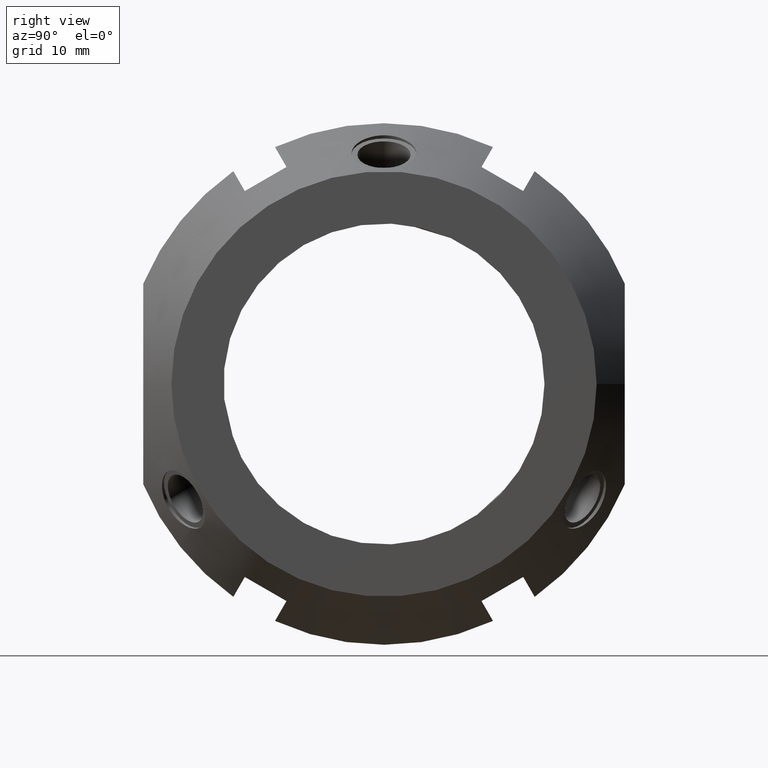
[diagram: clean part render]
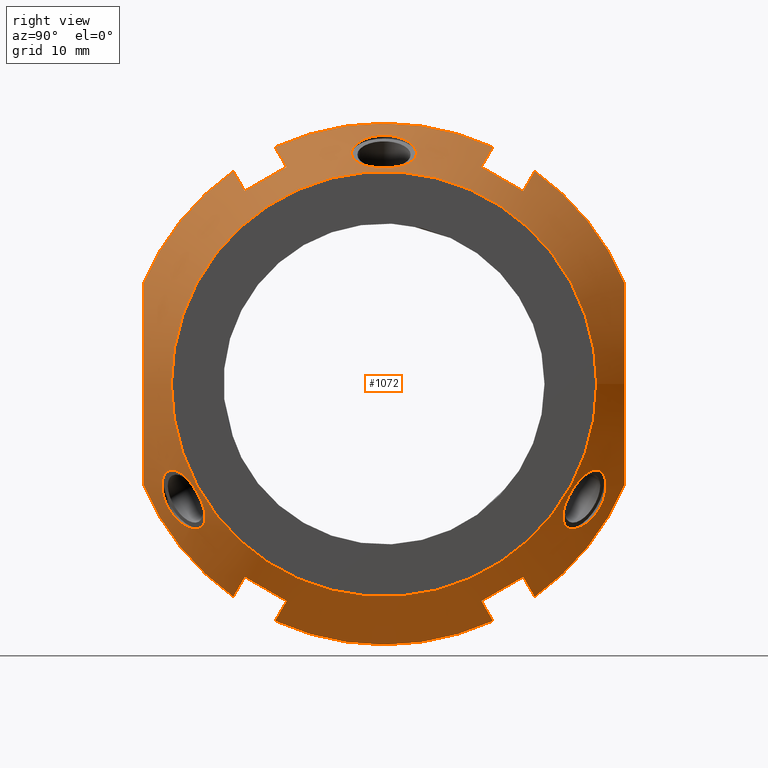
[diagram: same view with one face highlighted and labeled with its STEP entity id]
A machine part, right view. The second image highlights one B-rep face of the part: STEP entity #1072.
In plain terms, the highlighted conical surface has half-angle 30 deg.
Its self-contained STEP definition (entity closure, byte-faithful):
#90=CARTESIAN_POINT('',(16.540316035896449,17.348076211353295,-24.04774941164094));
#91=VERTEX_POINT('',#90);
#98=CARTESIAN_POINT('',(16.540316035896449,12.151923788646661,-27.047749411640936));
#99=VERTEX_POINT('',#98);
#100=CARTESIAN_POINT('',(16.540316035896449,12.151923788646661,-27.047749411640936));
#101=CARTESIAN_POINT('',(17.066026895472259,14.750000000000156,-25.547749411640833));
#102=CARTESIAN_POINT('',(16.540316035896449,17.348076211353295,-24.04774941164094));
#110=(BOUNDED_CURVE()B_SPLINE_CURVE(2,(#100,#101,#102),.UNSPECIFIED.,.F.,.U.)B_SPLINE_CURVE_WITH_KNOTS((3,3),(1.122959180387833,1.795944723477461),.UNSPECIFIED.)CURVE()GEOMETRIC_REPRESENTATION_ITEM()RATIONAL_B_SPLINE_CURVE((1.048144488295492,1.05355042695875,1.048144488295493))REPRESENTATION_ITEM(''));
#111=EDGE_CURVE('',#99,#91,#110,.T.);
#143=CARTESIAN_POINT('',(11.607695154586736,13.582544913931082,-29.525657887014884));
#144=VERTEX_POINT('',#143);
#145=CARTESIAN_POINT('',(11.607695154586724,13.582544913931089,-29.525657887014887));
#146=CARTESIAN_POINT('',(14.188078819209133,12.83445837981427,-28.229934001466471));
#147=CARTESIAN_POINT('',(16.540316035896453,12.151923788646659,-27.047749411640936));
#155=(BOUNDED_CURVE()B_SPLINE_CURVE(2,(#145,#146,#147),.UNSPECIFIED.,.F.,.U.)B_SPLINE_CURVE_WITH_KNOTS((3,3),(0.0,0.570240793537052),.UNSPECIFIED.)CURVE()GEOMETRIC_REPRESENTATION_ITEM()RATIONAL_B_SPLINE_CURVE((1.0,1.001061348112866,1.0))REPRESENTATION_ITEM(''));
#156=EDGE_CURVE('',#144,#99,#155,.T.);
#187=CARTESIAN_POINT('',(11.607695154586736,18.778697336637716,-26.525657887014887));
#188=VERTEX_POINT('',#187);
#195=CARTESIAN_POINT('',(16.540316035896449,17.348076211353298,-24.04774941164094));
#196=CARTESIAN_POINT('',(14.18807882505018,18.030610800826775,-25.229933998532161));
#197=CARTESIAN_POINT('',(11.607695154586722,18.778697336637723,-26.525657887014891));
#205=(BOUNDED_CURVE()B_SPLINE_CURVE(2,(#195,#196,#197),.UNSPECIFIED.,.F.,.U.)B_SPLINE_CURVE_WITH_KNOTS((3,3),(0.0,0.570240793537052),.UNSPECIFIED.)CURVE()GEOMETRIC_REPRESENTATION_ITEM()RATIONAL_B_SPLINE_CURVE((1.0,1.001061348323137,1.0))REPRESENTATION_ITEM(''));
#206=EDGE_CURVE('',#91,#188,#205,.T.);
#234=CARTESIAN_POINT('',(16.540316035896453,-17.34807621135332,-24.047749411640925));
#235=VERTEX_POINT('',#234);
#242=CARTESIAN_POINT('',(11.607695154586741,-18.778697336637713,-26.52565788701488));
#243=VERTEX_POINT('',#242);
#244=CARTESIAN_POINT('',(11.607695154586722,-18.778697336637716,-26.525657887014891));
#245=CARTESIAN_POINT('',(14.188078825233294,-18.030610800773673,-25.22993399844016));
#246=CARTESIAN_POINT('',(16.540316035896453,-17.348076211353316,-24.047749411640925));
#254=(BOUNDED_CURVE()B_SPLINE_CURVE(2,(#244,#245,#246),.UNSPECIFIED.,.F.,.U.)B_SPLINE_CURVE_WITH_KNOTS((3,3),(0.0,0.570240793537052),.UNSPECIFIED.)CURVE()GEOMETRIC_REPRESENTATION_ITEM()RATIONAL_B_SPLINE_CURVE((1.0,1.001061348352219,1.0))REPRESENTATION_ITEM(''));
#255=EDGE_CURVE('',#243,#235,#254,.T.);
#288=CARTESIAN_POINT('',(11.607695154586731,-13.582544913931084,-29.525657887014884));
#289=VERTEX_POINT('',#288);
#296=CARTESIAN_POINT('',(16.540316035896449,-12.151923788646686,-27.047749411640929));
#297=VERTEX_POINT('',#296);
#298=CARTESIAN_POINT('',(16.540316035896449,-12.151923788646684,-27.047749411640929));
#299=CARTESIAN_POINT('',(14.188078820549956,-12.834458379425392,-28.229934000792891));
#300=CARTESIAN_POINT('',(11.607695154586722,-13.582544913931088,-29.525657887014887));
#308=(BOUNDED_CURVE()B_SPLINE_CURVE(2,(#298,#299,#300),.UNSPECIFIED.,.F.,.U.)B_SPLINE_CURVE_WITH_KNOTS((3,3),(0.0,0.570240793537052),.UNSPECIFIED.)CURVE()GEOMETRIC_REPRESENTATION_ITEM()RATIONAL_B_SPLINE_CURVE((1.0,1.001061348164373,1.0))REPRESENTATION_ITEM(''));
#309=EDGE_CURVE('',#297,#289,#308,.T.);
#339=CARTESIAN_POINT('',(16.540316035896453,-17.34807621135332,-24.047749411640925));
#340=CARTESIAN_POINT('',(17.066026895472259,-14.749999999999819,-25.547749411641032));
#341=CARTESIAN_POINT('',(16.540316035896449,-12.151923788646686,-27.047749411640929));
#349=(BOUNDED_CURVE()B_SPLINE_CURVE(2,(#339,#340,#341),.UNSPECIFIED.,.F.,.U.)B_SPLINE_CURVE_WITH_KNOTS((3,3),(1.12295918038783,1.795944723477455),.UNSPECIFIED.)CURVE()GEOMETRIC_REPRESENTATION_ITEM()RATIONAL_B_SPLINE_CURVE((1.048144488295489,1.053550426958746,1.048144488295489))REPRESENTATION_ITEM(''));
#350=EDGE_CURVE('',#235,#297,#349,.T.);
#557=CARTESIAN_POINT('',(11.607695154586724,0.0,0.0));
#558=DIRECTION('',(1.0,0.0,0.0));
#559=DIRECTION('',(0.0,1.0,0.0));
#560=AXIS2_PLACEMENT_3D('',#557,#558,#559);
#561=CIRCLE('',#560,32.499999999999993);
#562=EDGE_CURVE('',#289,#144,#561,.T.);
#575=CARTESIAN_POINT('',(11.607695154586724,-30.000000000000039,-12.499999999999897));
#576=VERTEX_POINT('',#575);
#577=CARTESIAN_POINT('',(11.607695154586724,0.0,0.0));
#578=DIRECTION('',(1.0,0.0,0.0));
#579=DIRECTION('',(0.0,1.0,0.0));
#580=AXIS2_PLACEMENT_3D('',#577,#578,#579);
#581=CIRCLE('',#580,32.499999999999993);
#582=EDGE_CURVE('',#576,#243,#581,.T.);
#600=CARTESIAN_POINT('',(16.540316035896449,12.151923788646661,27.047749411640936));
#601=VERTEX_POINT('',#600);
#608=CARTESIAN_POINT('',(16.540316035896449,17.348076211353295,24.04774941164094));
#609=VERTEX_POINT('',#608);
#610=CARTESIAN_POINT('',(16.540316035896449,17.348076211353295,24.04774941164094));
#611=CARTESIAN_POINT('',(17.066026895472262,14.749999999999801,25.547749411641046));
#612=CARTESIAN_POINT('',(16.540316035896449,12.151923788646661,27.047749411640936));
#620=(BOUNDED_CURVE()B_SPLINE_CURVE(2,(#610,#611,#612),.UNSPECIFIED.,.F.,.U.)B_SPLINE_CURVE_WITH_KNOTS((3,3),(1.122959180387833,1.795944723477462),.UNSPECIFIED.)CURVE()GEOMETRIC_REPRESENTATION_ITEM()RATIONAL_B_SPLINE_CURVE((1.048144488295492,1.053550426958749,1.048144488295492))REPRESENTATION_ITEM(''));
#621=EDGE_CURVE('',#609,#601,#620,.T.);
#639=CARTESIAN_POINT('',(11.607695154586736,18.778697336637716,26.525657887014887));
#640=VERTEX_POINT('',#639);
#641=CARTESIAN_POINT('',(11.607695154586722,18.778697336637723,26.525657887014891));
#642=CARTESIAN_POINT('',(14.188078823961231,18.030610801142611,25.229933999079208));
#643=CARTESIAN_POINT('',(16.540316035896449,17.348076211353295,24.04774941164094));
#651=(BOUNDED_CURVE()B_SPLINE_CURVE(2,(#641,#642,#643),.UNSPECIFIED.,.F.,.U.)B_SPLINE_CURVE_WITH_KNOTS((3,3),(0.0,0.539530756054235),.UNSPECIFIED.)CURVE()GEOMETRIC_REPRESENTATION_ITEM()RATIONAL_B_SPLINE_CURVE((1.0,1.002364907290713,1.002606049517808))REPRESENTATION_ITEM(''));
#652=EDGE_CURVE('',#640,#609,#651,.T.);
#669=CARTESIAN_POINT('',(11.607695154586736,13.582544913931082,29.525657887014884));
#670=VERTEX_POINT('',#669);
#677=CARTESIAN_POINT('',(16.540316035896449,12.151923788646661,27.047749411640936));
#678=CARTESIAN_POINT('',(14.18807882359555,12.8344583785422,28.229933999263178));
#679=CARTESIAN_POINT('',(11.607695154586724,13.582544913931089,29.525657887014887));
#687=(BOUNDED_CURVE()B_SPLINE_CURVE(2,(#677,#678,#679),.UNSPECIFIED.,.F.,.U.)B_SPLINE_CURVE_WITH_KNOTS((3,3),(0.662052451349596,1.201583207497734),.UNSPECIFIED.)CURVE()GEOMETRIC_REPRESENTATION_ITEM()RATIONAL_B_SPLINE_CURVE((1.002606049484695,1.002364907260999,1.0))REPRESENTATION_ITEM(''));
#688=EDGE_CURVE('',#601,#670,#687,.T.);
#700=CARTESIAN_POINT('',(16.540316035896453,-17.34807621135332,24.047749411640925));
#701=VERTEX_POINT('',#700);
#708=CARTESIAN_POINT('',(16.540316035896449,-12.151923788646686,27.047749411640929));
#709=VERTEX_POINT('',#708);
#710=CARTESIAN_POINT('',(16.540316035896449,-12.151923788646686,27.047749411640929));
#711=CARTESIAN_POINT('',(17.066026895472266,-14.750000000000183,25.547749411640822));
#712=CARTESIAN_POINT('',(16.540316035896453,-17.34807621135332,24.047749411640925));
#720=(BOUNDED_CURVE()B_SPLINE_CURVE(2,(#710,#711,#712),.UNSPECIFIED.,.F.,.U.)B_SPLINE_CURVE_WITH_KNOTS((3,3),(1.122959180387831,1.795944723477457),.UNSPECIFIED.)CURVE()GEOMETRIC_REPRESENTATION_ITEM()RATIONAL_B_SPLINE_CURVE((1.048144488295489,1.053550426958746,1.048144488295489))REPRESENTATION_ITEM(''));
#721=EDGE_CURVE('',#709,#701,#720,.T.);
#739=CARTESIAN_POINT('',(11.607695154586731,-13.582544913931084,29.525657887014884));
#740=VERTEX_POINT('',#739);
#741=CARTESIAN_POINT('',(11.607695154586722,-13.582544913931088,29.525657887014887));
#742=CARTESIAN_POINT('',(14.188078823582666,-12.83445837854595,28.229933999269655));
#743=CARTESIAN_POINT('',(16.540316035896449,-12.151923788646686,27.047749411640929));
#751=(BOUNDED_CURVE()B_SPLINE_CURVE(2,(#741,#742,#743),.UNSPECIFIED.,.F.,.U.)B_SPLINE_CURVE_WITH_KNOTS((3,3),(0.0,0.539530756152027),.UNSPECIFIED.)CURVE()GEOMETRIC_REPRESENTATION_ITEM()RATIONAL_B_SPLINE_CURVE((1.0,1.002364907260734,1.002606049484388))REPRESENTATION_ITEM(''));
#752=EDGE_CURVE('',#740,#709,#751,.T.);
#769=CARTESIAN_POINT('',(11.607695154586741,-18.778697336637713,26.52565788701488));
#770=VERTEX_POINT('',#769);
#777=CARTESIAN_POINT('',(16.540316035896453,-17.34807621135332,24.047749411640925));
#778=CARTESIAN_POINT('',(14.188078823955939,-18.030610801144164,25.229933999081858));
#779=CARTESIAN_POINT('',(11.607695154586722,-18.778697336637716,26.525657887014891));
#787=(BOUNDED_CURVE()B_SPLINE_CURVE(2,(#777,#778,#779),.UNSPECIFIED.,.F.,.U.)B_SPLINE_CURVE_WITH_KNOTS((3,3),(0.662052451443166,1.201583207497734),.UNSPECIFIED.)CURVE()GEOMETRIC_REPRESENTATION_ITEM()RATIONAL_B_SPLINE_CURVE((1.002606049515815,1.002364907288905,1.0))REPRESENTATION_ITEM(''));
#788=EDGE_CURVE('',#701,#770,#787,.T.);
#800=CARTESIAN_POINT('',(11.607695154586724,30.00000000000005,12.499999999999861));
#801=VERTEX_POINT('',#800);
#802=CARTESIAN_POINT('',(11.607695154586724,0.0,0.0));
#803=DIRECTION('',(1.0,0.0,0.0));
#804=DIRECTION('',(0.0,1.0,0.0));
#805=AXIS2_PLACEMENT_3D('',#802,#803,#804);
#806=CIRCLE('',#805,32.499999999999993);
#807=EDGE_CURVE('',#801,#640,#806,.T.);
#826=CARTESIAN_POINT('',(11.607695154586724,-30.00000000000005,12.499999999999861));
#827=VERTEX_POINT('',#826);
#834=CARTESIAN_POINT('',(11.607695154586724,0.0,0.0));
#835=DIRECTION('',(1.0,0.0,0.0));
#836=DIRECTION('',(0.0,1.0,0.0));
#837=AXIS2_PLACEMENT_3D('',#834,#835,#836);
#838=CIRCLE('',#837,32.499999999999993);
#839=EDGE_CURVE('',#770,#827,#838,.T.);
#851=CARTESIAN_POINT('',(11.607695154586724,30.000000000000039,-12.499999999999897));
#852=VERTEX_POINT('',#851);
#853=CARTESIAN_POINT('',(11.607695154586724,30.000000000000036,-12.499999999999908));
#854=CARTESIAN_POINT('',(19.934862498667737,30.000000000000043,-1.788227E-014));
#855=CARTESIAN_POINT('',(11.607695154586724,30.000000000000043,12.499999999999877));
#863=(BOUNDED_CURVE()B_SPLINE_CURVE(2,(#853,#854,#855),.UNSPECIFIED.,.F.,.U.)B_SPLINE_CURVE_WITH_KNOTS((3,3),(0.0,2.645751311064566),.UNSPECIFIED.)CURVE()GEOMETRIC_REPRESENTATION_ITEM()RATIONAL_B_SPLINE_CURVE((1.0,1.083333333333334,1.0))REPRESENTATION_ITEM(''));
#864=EDGE_CURVE('',#852,#801,#863,.T.);
#882=CARTESIAN_POINT('',(11.607695154586722,-30.00000000000005,12.499999999999877));
#883=CARTESIAN_POINT('',(19.934862498667737,-30.000000000000043,-1.880924E-014));
#884=CARTESIAN_POINT('',(11.607695154586724,-30.000000000000036,-12.499999999999908));
#892=(BOUNDED_CURVE()B_SPLINE_CURVE(2,(#882,#883,#884),.UNSPECIFIED.,.F.,.U.)B_SPLINE_CURVE_WITH_KNOTS((3,3),(0.0,2.645751311064566),.UNSPECIFIED.)CURVE()GEOMETRIC_REPRESENTATION_ITEM()RATIONAL_B_SPLINE_CURVE((1.0,1.08333333333333,1.0))REPRESENTATION_ITEM(''));
#893=EDGE_CURVE('',#827,#576,#892,.T.);
#899=CARTESIAN_POINT('',(16.803847577293357,0.0,0.0));
#900=DIRECTION('',(-1.0,0.0,0.0));
#901=DIRECTION('',(0.0,1.0,0.0));
#902=AXIS2_PLACEMENT_3D('',#899,#900,#901);
#903=CONICAL_SURFACE('',#902,29.5,29.999999999999954);
#904=ORIENTED_EDGE('',*,*,#206,.T.);
#905=CARTESIAN_POINT('',(11.607695154586724,0.0,0.0));
#906=DIRECTION('',(1.0,0.0,0.0));
#907=DIRECTION('',(0.0,1.0,0.0));
#908=AXIS2_PLACEMENT_3D('',#905,#906,#907);
#909=CIRCLE('',#908,32.499999999999993);
#910=EDGE_CURVE('',#188,#852,#909,.T.);
#911=ORIENTED_EDGE('',*,*,#910,.T.);
#912=ORIENTED_EDGE('',*,*,#864,.T.);
#913=ORIENTED_EDGE('',*,*,#807,.T.);
#914=ORIENTED_EDGE('',*,*,#652,.T.);
#915=ORIENTED_EDGE('',*,*,#621,.T.);
#916=ORIENTED_EDGE('',*,*,#688,.T.);
#917=CARTESIAN_POINT('',(11.607695154586724,0.0,0.0));
#918=DIRECTION('',(1.0,0.0,0.0));
#919=DIRECTION('',(0.0,1.0,0.0));
#920=AXIS2_PLACEMENT_3D('',#917,#918,#919);
#921=CIRCLE('',#920,32.499999999999993);
#922=EDGE_CURVE('',#670,#740,#921,.T.);
#923=ORIENTED_EDGE('',*,*,#922,.T.);
#924=ORIENTED_EDGE('',*,*,#752,.T.);
#925=ORIENTED_EDGE('',*,*,#721,.T.);
#926=ORIENTED_EDGE('',*,*,#788,.T.);
#927=ORIENTED_EDGE('',*,*,#839,.T.);
#928=ORIENTED_EDGE('',*,*,#893,.T.);
#929=ORIENTED_EDGE('',*,*,#582,.T.);
#930=ORIENTED_EDGE('',*,*,#255,.T.);
#931=ORIENTED_EDGE('',*,*,#350,.T.);
#932=ORIENTED_EDGE('',*,*,#309,.T.);
#933=ORIENTED_EDGE('',*,*,#562,.T.);
#934=ORIENTED_EDGE('',*,*,#156,.T.);
#935=ORIENTED_EDGE('',*,*,#111,.T.);
#936=EDGE_LOOP('',(#904,#911,#912,#913,#914,#915,#916,#923,#924,#925,#926,#927,#928,#929,#930,#931,#932,#933,#934,#935));
#937=FACE_OUTER_BOUND('',#936,.T.);
#938=CARTESIAN_POINT('',(21.999999999999993,26.500000000000004,0.0));
#939=VERTEX_POINT('',#938);
#940=CARTESIAN_POINT('',(21.999999999999993,0.0,0.0));
#941=DIRECTION('',(1.0,0.0,0.0));
#942=DIRECTION('',(0.0,1.0,0.0));
#943=AXIS2_PLACEMENT_3D('',#940,#941,#942);
#944=CIRCLE('',#943,26.500000000000004);
#945=EDGE_CURVE('',#939,#939,#944,.T.);
#946=ORIENTED_EDGE('',*,*,#945,.F.);
#947=EDGE_LOOP('',(#946));
#948=FACE_BOUND('',#947,.T.);
#949=CARTESIAN_POINT('',(17.847125000796311,4.040092556835732,28.613853424807417));
#950=VERTEX_POINT('',#949);
#951=CARTESIAN_POINT('',(17.847125000796311,4.040092556835732,28.613853424807417));
#952=CARTESIAN_POINT('',(18.267560425551149,4.006156040479844,28.373498905425691));
#953=CARTESIAN_POINT('',(18.717278575905492,3.877419568453618,28.12996274385732));
#954=CARTESIAN_POINT('',(19.548081815989583,3.432391200460732,27.704467883436649));
#955=CARTESIAN_POINT('',(19.928904928818053,3.116125164000053,27.521970823935924));
#956=CARTESIAN_POINT('',(20.531328990726124,2.40736473574457,27.243878997255813));
#957=CARTESIAN_POINT('',(20.795076306936227,1.965274837010447,27.128730602702493));
#958=CARTESIAN_POINT('',(21.145719570061839,1.004311631673119,26.978722622769304));
#959=CARTESIAN_POINT('',(21.232239485470803,0.485394328815578,26.943266739736597));
#960=CARTESIAN_POINT('',(21.232239485470803,-0.485394328815578,26.943266739736597));
#961=CARTESIAN_POINT('',(21.145719570061839,-1.004311631673121,26.978722622769304));
#962=CARTESIAN_POINT('',(20.795076306936227,-1.965274837010449,27.128730602702493));
#963=CARTESIAN_POINT('',(20.531328990726124,-2.40736473574457,27.243878997255813));
#964=CARTESIAN_POINT('',(19.928904928818053,-3.116125164000053,27.521970823935924));
#965=CARTESIAN_POINT('',(19.548081815989587,-3.432391200460732,27.704467883436649));
#966=CARTESIAN_POINT('',(18.717278575905492,-3.877419568453618,28.12996274385732));
#967=CARTESIAN_POINT('',(18.267560425551149,-4.006156040479844,28.373498905425691));
#968=CARTESIAN_POINT('',(17.385672887748825,-4.07733983967596,28.877656364138431));
#969=CARTESIAN_POINT('',(16.895589250429829,-4.005714049558683,29.174163876997184));
#970=CARTESIAN_POINT('',(15.998694190602119,-3.629488190351875,29.745070464095665));
#971=CARTESIAN_POINT('',(15.591459147792614,-3.324916237600026,30.018822296454225));
#972=CARTESIAN_POINT('',(14.949164794304489,-2.59945642733695,30.462487448838349));
#973=CARTESIAN_POINT('',(14.673165654301352,-2.132396197627155,30.660535068855829));
#974=CARTESIAN_POINT('',(14.307440256966506,-1.099107970211216,30.926194641513444));
#975=CARTESIAN_POINT('',(14.217433714816838,-0.532840470142115,30.993266739736598));
#976=CARTESIAN_POINT('',(14.217433714816838,0.532840470142114,30.993266739736598));
#977=CARTESIAN_POINT('',(14.307440256966506,1.099107970211213,30.92619464151344));
#978=CARTESIAN_POINT('',(14.673165654301352,2.132396197627153,30.660535068855825));
#979=CARTESIAN_POINT('',(14.949164794304489,2.59945642733695,30.462487448838349));
#980=CARTESIAN_POINT('',(15.591459147792616,3.324916237600028,30.018822296454225));
#981=CARTESIAN_POINT('',(15.998694190602123,3.629488190351879,29.745070464095669));
#982=CARTESIAN_POINT('',(16.895589250429829,4.005714049558684,29.174163876997188));
#983=CARTESIAN_POINT('',(17.385672887748825,4.077339839675959,28.877656364138431));
#984=CARTESIAN_POINT('',(17.847125000796311,4.040092556835732,28.613853424807417));
#985=B_SPLINE_CURVE_WITH_KNOTS('',3,(#951,#952,#953,#954,#955,#956,#957,#958,#959,#960,#961,#962,#963,#964,#965,#966,#967,#968,#969,#970,#971,#972,#973,#974,#975,#976,#977,#978,#979,#980,#981,#982,#983,#984),.UNSPECIFIED.,.T.,.U.,(4,2,2,2,2,2,2,2,2,2,2,2,2,2,2,2,4),(0.0,0.145643103395436,0.291286206790872,0.436904505435545,0.582522804080219,0.728141102724893,0.873759401369566,1.019402504765002,1.165045608160438,1.324897309172091,1.484749010183744,1.644601151226379,1.804453292269013,1.964305433311648,2.124157574354282,2.284009275365936,2.443860976377589),.UNSPECIFIED.);
#986=EDGE_CURVE('',#950,#950,#985,.T.);
#987=ORIENTED_EDGE('',*,*,#986,.T.);
#988=EDGE_LOOP('',(#987));
#989=FACE_BOUND('',#988,.T.);
#990=CARTESIAN_POINT('',(17.847125000796307,-26.800370244465455,-10.808103924543534));
#991=VERTEX_POINT('',#990);
#992=CARTESIAN_POINT('',(17.847125000796307,-26.800370244465455,-10.808103924543534));
#993=CARTESIAN_POINT('',(18.267560425551142,-26.575248866588538,-10.717316550132816));
#994=CARTESIAN_POINT('',(18.717278575905482,-26.299972127917066,-10.707037524516922));
#995=CARTESIAN_POINT('',(19.548081815989576,-25.708968585616603,-10.879695966393152));
#996=CARTESIAN_POINT('',(19.928904928818042,-25.392788477742677,-11.062341858571955));
#997=CARTESIAN_POINT('',(20.53132899072612,-24.79757367712514,-11.537100481298289));
#998=CARTESIAN_POINT('',(20.795076306936227,-24.476807292869918,-11.862387367081869));
#999=CARTESIAN_POINT('',(21.145719570061839,-23.866414968808726,-12.619601925039525));
#1000=CARTESIAN_POINT('',(21.232239485470807,-23.576250621960014,-13.051269550261107));
#1001=CARTESIAN_POINT('',(21.232239485470807,-23.090856293144437,-13.891997189475482));
#1002=CARTESIAN_POINT('',(21.145719570061836,-22.862103337135608,-14.35912069772977));
#1003=CARTESIAN_POINT('',(20.795076306936224,-22.51153245585947,-15.266343235620612));
#1004=CARTESIAN_POINT('',(20.531328990726124,-22.390208941380571,-15.706778515957506));
#1005=CARTESIAN_POINT('',(19.928904928818049,-22.276663313742624,-16.459628965363947));
#1006=CARTESIAN_POINT('',(19.548081815989583,-22.276577385155871,-16.824771917043478));
#1007=CARTESIAN_POINT('',(18.717278575905492,-22.422552559463441,-17.422925219340385));
#1008=CARTESIAN_POINT('',(18.267560425551146,-22.569092826108701,-17.656182355292867));
#1009=CARTESIAN_POINT('',(17.385672887748825,-22.970114093263277,-17.969908063090966));
#1010=CARTESIAN_POINT('',(16.895589250429822,-23.26271002687054,-18.056132065712642));
#1011=CARTESIAN_POINT('',(15.998694190602116,-23.945242564089103,-18.015764207628159));
#1012=CARTESIAN_POINT('',(15.591459147792612,-24.33460458162007,-17.888873075444106));
#1013=CARTESIAN_POINT('',(14.949164794304487,-25.081559779490156,-17.482439026523704));
#1014=CARTESIAN_POINT('',(14.67316565430135,-25.486604164439235,-17.176976812506364));
#1015=CARTESIAN_POINT('',(14.307440256966505,-26.23331621682722,-16.414952744461576));
#1016=CARTESIAN_POINT('',(14.217433714816837,-26.574536107808147,-15.958086753175811));
#1017=CARTESIAN_POINT('',(14.217433714816837,-27.107376577950255,-15.035179986560781));
#1018=CARTESIAN_POINT('',(14.307440256966501,-27.332424187038434,-14.51124189705186));
#1019=CARTESIAN_POINT('',(14.673165654301348,-27.619000362066387,-13.483558256349458));
#1020=CARTESIAN_POINT('',(14.949164794304481,-27.681016206827103,-12.980048422314637));
#1021=CARTESIAN_POINT('',(15.591459147792609,-27.659520819220095,-12.12994922101011));
#1022=CARTESIAN_POINT('',(15.998694190602112,-27.574730754440978,-11.729306256467495));
#1023=CARTESIAN_POINT('',(16.895589250429822,-27.26842407642922,-11.118031811284531));
#1024=CARTESIAN_POINT('',(17.385672887748818,-27.047453932939234,-10.907748301047462));
#1025=CARTESIAN_POINT('',(17.847125000796311,-26.800370244465455,-10.808103924543534));
#1026=B_SPLINE_CURVE_WITH_KNOTS('',3,(#992,#993,#994,#995,#996,#997,#998,#999,#1000,#1001,#1002,#1003,#1004,#1005,#1006,#1007,#1008,#1009,#1010,#1011,#1012,#1013,#1014,#1015,#1016,#1017,#1018,#1019,#1020,#1021,#1022,#1023,#1024,#1025),.UNSPECIFIED.,.T.,.U.,(4,2,2,2,2,2,2,2,2,2,2,2,2,2,2,2,4),(0.0,0.145643103395436,0.291286206790871,0.436904505435546,0.58252280408022,0.728141102724893,0.873759401369567,1.019402504765003,1.165045608160438,1.324897309172092,1.484749010183744,1.644601151226379,1.804453292269013,1.964305433311647,2.124157574354282,2.284009275365935,2.443860976377589),.UNSPECIFIED.);
#1027=EDGE_CURVE('',#991,#991,#1026,.T.);
#1028=ORIENTED_EDGE('',*,*,#1027,.T.);
#1029=EDGE_LOOP('',(#1028));
#1030=FACE_BOUND('',#1029,.T.);
#1031=CARTESIAN_POINT('',(17.847125000796311,22.760277687629717,-17.805749500263886));
#1032=VERTEX_POINT('',#1031);
#1033=CARTESIAN_POINT('',(17.847125000796311,22.760277687629717,-17.805749500263886));
#1034=CARTESIAN_POINT('',(18.267560425551146,22.569092826108687,-17.656182355292881));
#1035=CARTESIAN_POINT('',(18.717278575905489,22.422552559463433,-17.422925219340403));
#1036=CARTESIAN_POINT('',(19.548081815989583,22.276577385155861,-16.824771917043496));
#1037=CARTESIAN_POINT('',(19.928904928818049,22.276663313742606,-16.459628965363969));
#1038=CARTESIAN_POINT('',(20.531328990726124,22.39020894138055,-15.706778515957527));
#1039=CARTESIAN_POINT('',(20.795076306936224,22.511532455859452,-15.266343235620631));
#1040=CARTESIAN_POINT('',(21.145719570061836,22.86210333713559,-14.359120697729789));
#1041=CARTESIAN_POINT('',(21.232239485470803,23.090856293144427,-13.891997189475498));
#1042=CARTESIAN_POINT('',(21.232239485470803,23.576250621960007,-13.051269550261122));
#1043=CARTESIAN_POINT('',(21.145719570061836,23.866414968808716,-12.619601925039543));
#1044=CARTESIAN_POINT('',(20.795076306936224,24.476807292869907,-11.862387367081888));
#1045=CARTESIAN_POINT('',(20.531328990726124,24.797573677125136,-11.537100481298307));
#1046=CARTESIAN_POINT('',(19.928904928818049,25.39278847774267,-11.062341858571976));
#1047=CARTESIAN_POINT('',(19.548081815989583,25.708968585616596,-10.879695966393172));
#1048=CARTESIAN_POINT('',(18.717278575905489,26.299972127917055,-10.707037524516942));
#1049=CARTESIAN_POINT('',(18.267560425551146,26.575248866588534,-10.717316550132834));
#1050=CARTESIAN_POINT('',(17.385672887748822,27.047453932939231,-10.90774830104748));
#1051=CARTESIAN_POINT('',(16.895589250429822,27.268424076429206,-11.118031811284549));
#1052=CARTESIAN_POINT('',(15.998694190602112,27.574730754440964,-11.729306256467513));
#1053=CARTESIAN_POINT('',(15.591459147792612,27.659520819220088,-12.129949221010126));
#1054=CARTESIAN_POINT('',(14.949164794304487,27.681016206827096,-12.980048422314649));
#1055=CARTESIAN_POINT('',(14.673165654301348,27.61900036206638,-13.483558256349472));
#1056=CARTESIAN_POINT('',(14.307440256966501,27.332424187038423,-14.511241897051871));
#1057=CARTESIAN_POINT('',(14.217433714816837,27.107376577950248,-15.035179986560792));
#1058=CARTESIAN_POINT('',(14.217433714816837,26.574536107808132,-15.958086753175824));
#1059=CARTESIAN_POINT('',(14.307440256966499,26.233316216827212,-16.414952744461587));
#1060=CARTESIAN_POINT('',(14.673165654301346,25.486604164439228,-17.176976812506378));
#1061=CARTESIAN_POINT('',(14.949164794304487,25.081559779490146,-17.482439026523725));
#1062=CARTESIAN_POINT('',(15.591459147792609,24.334604581620059,-17.888873075444124));
#1063=CARTESIAN_POINT('',(15.998694190602114,23.945242564089085,-18.015764207628177));
#1064=CARTESIAN_POINT('',(16.895589250429822,23.262710026870522,-18.05613206571266));
#1065=CARTESIAN_POINT('',(17.385672887748818,22.970114093263266,-17.96990806309098));
#1066=CARTESIAN_POINT('',(17.847125000796311,22.760277687629717,-17.805749500263889));
#1067=B_SPLINE_CURVE_WITH_KNOTS('',3,(#1033,#1034,#1035,#1036,#1037,#1038,#1039,#1040,#1041,#1042,#1043,#1044,#1045,#1046,#1047,#1048,#1049,#1050,#1051,#1052,#1053,#1054,#1055,#1056,#1057,#1058,#1059,#1060,#1061,#1062,#1063,#1064,#1065,#1066),.UNSPECIFIED.,.T.,.U.,(4,2,2,2,2,2,2,2,2,2,2,2,2,2,2,2,4),(0.0,0.145643103395436,0.291286206790872,0.436904505435545,0.582522804080219,0.728141102724893,0.873759401369567,1.019402504765002,1.165045608160438,1.324897309172091,1.484749010183744,1.644601151226378,1.804453292269013,1.964305433311647,2.124157574354282,2.284009275365935,2.443860976377588),.UNSPECIFIED.);
#1068=EDGE_CURVE('',#1032,#1032,#1067,.T.);
#1069=ORIENTED_EDGE('',*,*,#1068,.T.);
#1070=EDGE_LOOP('',(#1069));
#1071=FACE_BOUND('',#1070,.T.);
#1072=ADVANCED_FACE('',(#937,#948,#989,#1030,#1071),#903,.T.);